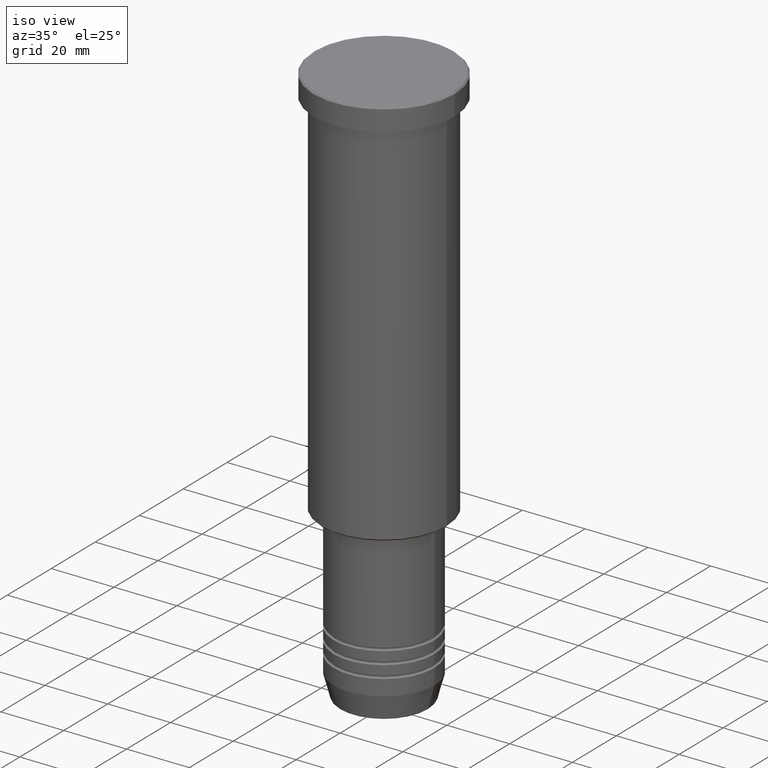
[diagram: clean part render]
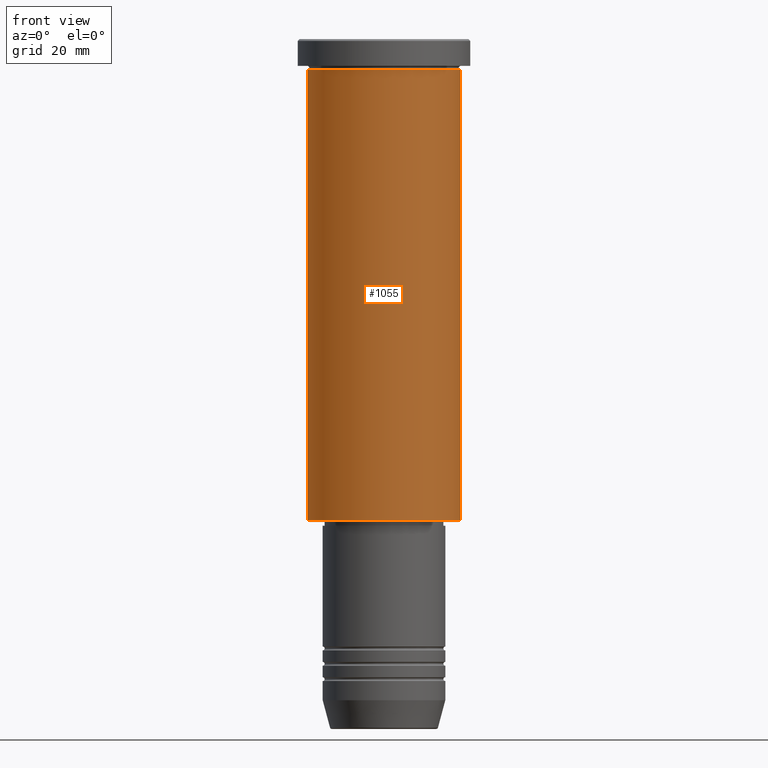
[diagram: tour spotlight — one face highlighted and labeled with its STEP entity id]
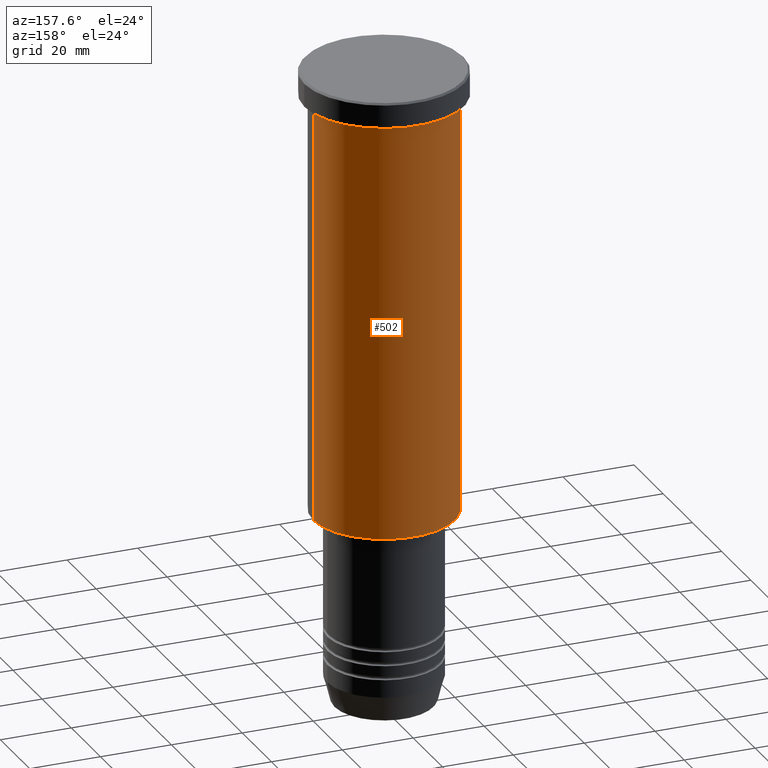
[diagram: tour spotlight — one face highlighted and labeled with its STEP entity id]
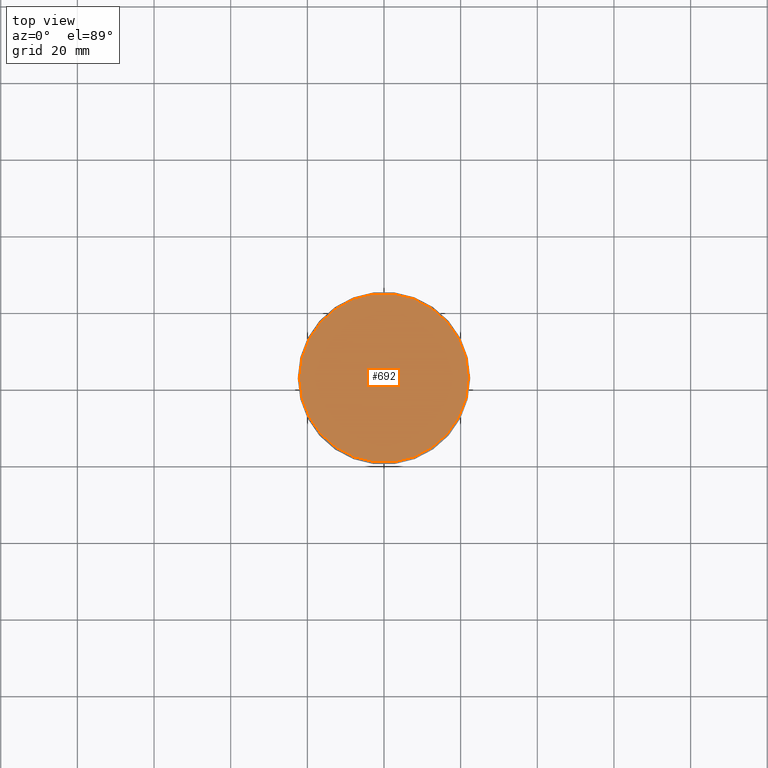
[diagram: tour spotlight — one face highlighted and labeled with its STEP entity id]
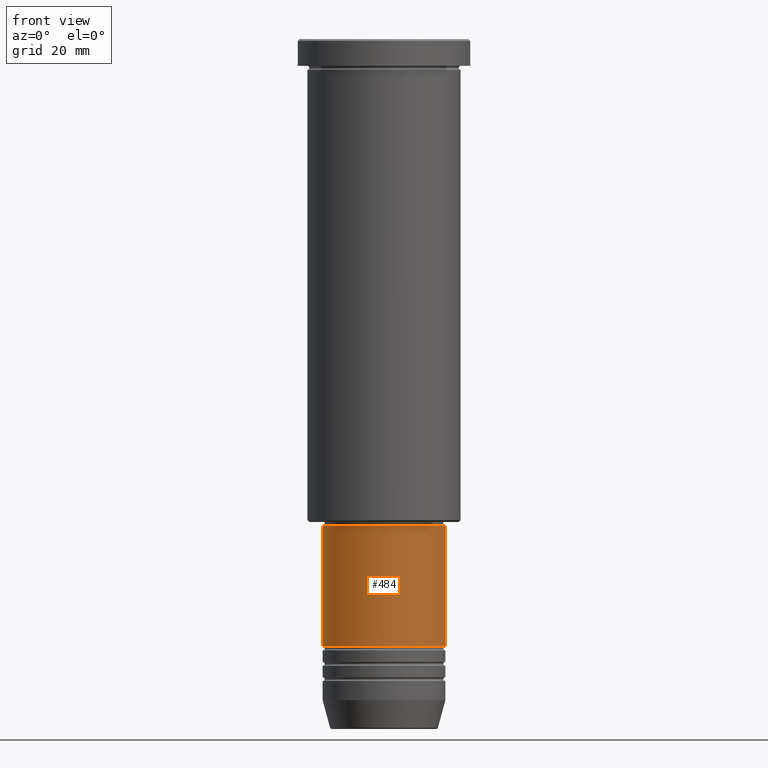
[diagram: tour spotlight — one face highlighted and labeled with its STEP entity id]
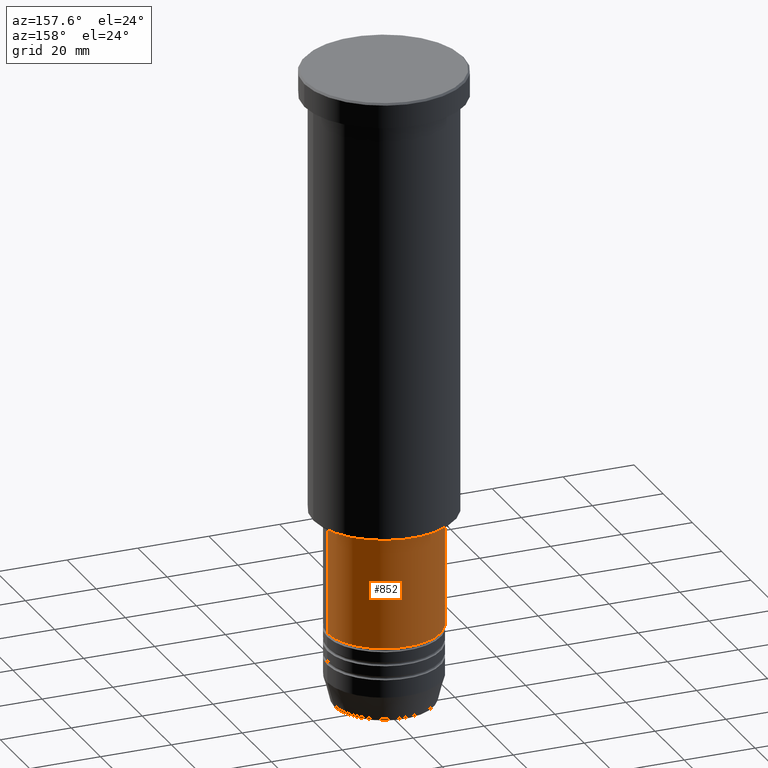
[diagram: tour spotlight — one face highlighted and labeled with its STEP entity id]
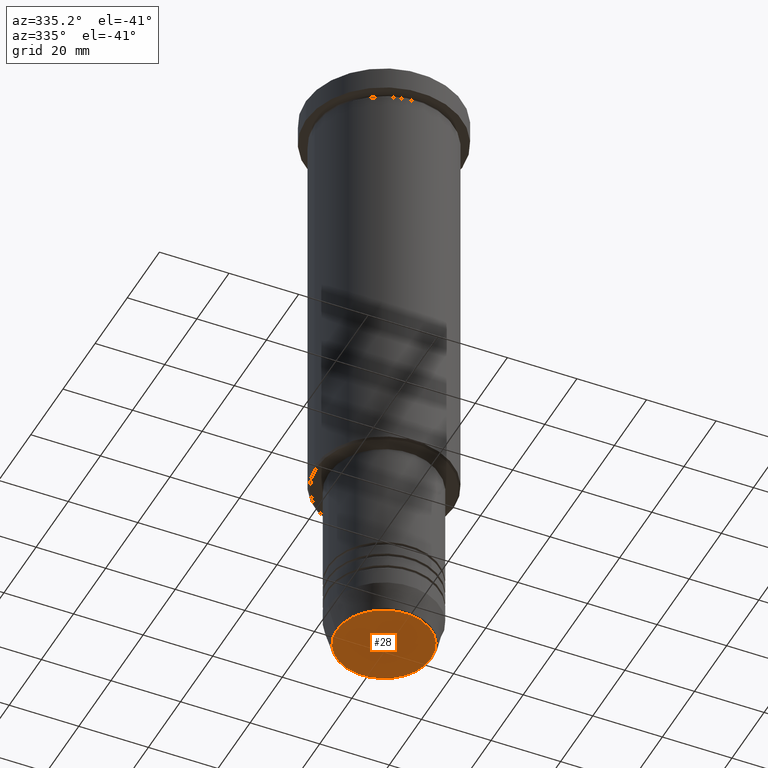
[diagram: tour spotlight — one face highlighted and labeled with its STEP entity id]
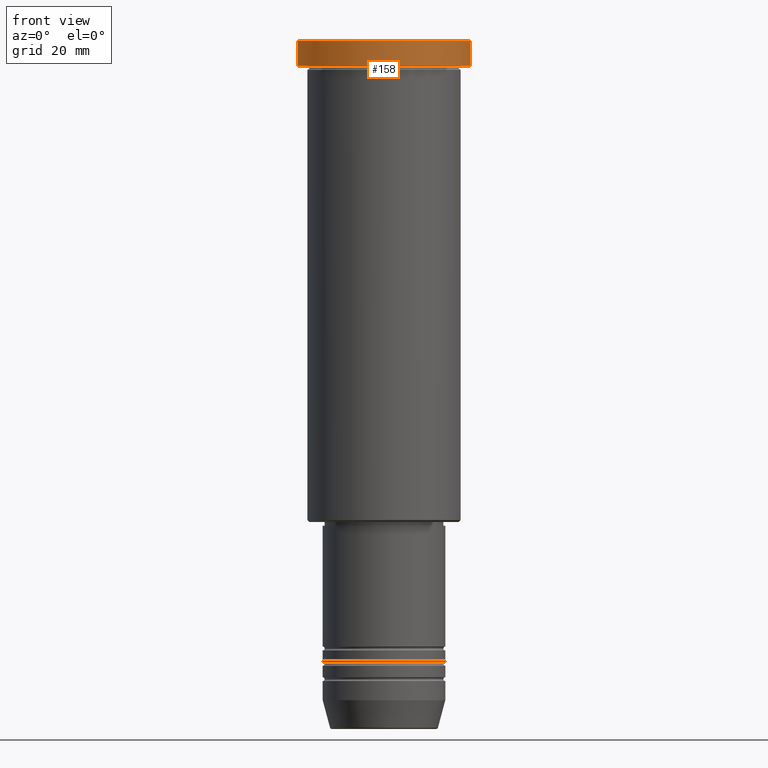
[diagram: tour spotlight — one face highlighted and labeled with its STEP entity id]
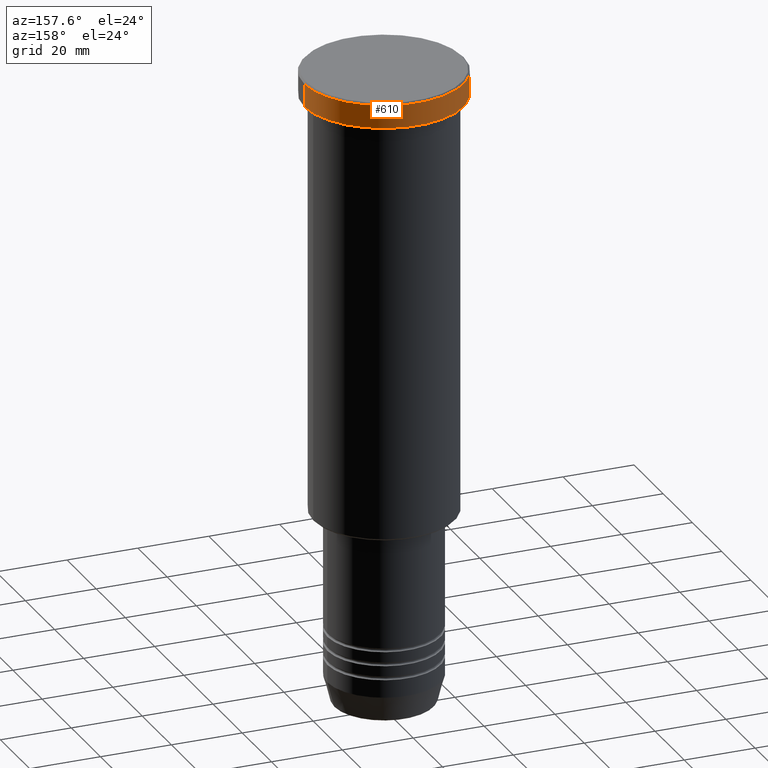
[diagram: tour spotlight — one face highlighted and labeled with its STEP entity id]
A machine part: a face-by-face anatomy tour. The part has 43 B-rep faces; the first image is the clean iso view, then the 8 largest visible faces are spotlighted one at a time (largest first), each with its STEP entity span.

Face 1 — front view, entity #1055. In plain terms, the highlighted cylindrical surface (partial cylindrical patch) has radius 20 mm, axis along (-0, -0, 1).
Definition (entity closure, byte-faithful):
#15 = ORIENTED_EDGE ( 'NONE', *, *, #117, .F. ) ;
#24 = ORIENTED_EDGE ( 'NONE', *, *, #882, .T. ) ;
#42 = AXIS2_PLACEMENT_3D ( 'NONE', #681, #99, #826 ) ;
#50 = ORIENTED_EDGE ( 'NONE', *, *, #293, .T. ) ;
#69 = VERTEX_POINT ( 'NONE', #744 ) ;
#75 = DIRECTION ( 'NONE',  ( -0.000000000000000000, -0.000000000000000000, 1.000000000000000000 ) ) ;
#84 = CARTESIAN_POINT ( 'NONE',  ( -20.00000000000000355, 2.449293598294706907E-15, 0.000000000000000000 ) ) ;
#99 = DIRECTION ( 'NONE',  ( -0.000000000000000000, -0.000000000000000000, 1.000000000000000000 ) ) ;
#117 = EDGE_CURVE ( 'NONE', #140, #69, #655, .T. ) ;
#121 = DIRECTION ( 'NONE',  ( 1.000000000000000000, 0.000000000000000000, 0.000000000000000000 ) ) ;
#140 = VERTEX_POINT ( 'NONE', #1010 ) ;
#145 = DIRECTION ( 'NONE',  ( -1.000000000000000000, 0.000000000000000000, 0.000000000000000000 ) ) ;
#200 = VERTEX_POINT ( 'NONE', #572 ) ;
#293 = EDGE_CURVE ( 'NONE', #200, #1036, #1107, .T. ) ;
#325 = CYLINDRICAL_SURFACE ( 'NONE', #1088, 20.00000000000000355 ) ;
#342 = DIRECTION ( 'NONE',  ( -0.000000000000000000, -0.000000000000000000, 1.000000000000000000 ) ) ;
#415 = CARTESIAN_POINT ( 'NONE',  ( 0.000000000000000000, 0.000000000000000000, 0.000000000000000000 ) ) ;
#419 = AXIS2_PLACEMENT_3D ( 'NONE', #718, #75, #145 ) ;
#423 = VECTOR ( 'NONE', #555, 1000.000000000000000 ) ;
#491 = EDGE_LOOP ( 'NONE', ( #904, #50, #24, #15 ) ) ;
#555 = DIRECTION ( 'NONE',  ( -0.000000000000000000, -0.000000000000000000, 1.000000000000000000 ) ) ;
#572 = CARTESIAN_POINT ( 'NONE',  ( -20.00000000000000355, 2.449293598294706907E-15, -125.5000000000000000 ) ) ;
#595 = FACE_OUTER_BOUND ( 'NONE', #491, .T. ) ;
#655 = CIRCLE ( 'NONE', #42, 20.00000000000000000 ) ;
#681 = CARTESIAN_POINT ( 'NONE',  ( 0.000000000000000000, 0.000000000000000000, -7.999999999999994671 ) ) ;
#714 = LINE ( 'NONE', #84, #423 ) ;
#718 = CARTESIAN_POINT ( 'NONE',  ( 0.000000000000000000, 0.000000000000000000, -125.5000000000000000 ) ) ;
#744 = CARTESIAN_POINT ( 'NONE',  ( 20.00000000000000000, 0.000000000000000000, -7.999999999999994671 ) ) ;
#747 = VECTOR ( 'NONE', #342, 1000.000000000000000 ) ;
#784 = LINE ( 'NONE', #967, #747 ) ;
#826 = DIRECTION ( 'NONE',  ( 1.000000000000000000, 0.000000000000000000, 0.000000000000000000 ) ) ;
#882 = EDGE_CURVE ( 'NONE', #1036, #69, #784, .T. ) ;
#904 = ORIENTED_EDGE ( 'NONE', *, *, #1165, .F. ) ;
#953 = DIRECTION ( 'NONE',  ( -0.000000000000000000, -0.000000000000000000, 1.000000000000000000 ) ) ;
#967 = CARTESIAN_POINT ( 'NONE',  ( 20.00000000000000355, 0.000000000000000000, 0.000000000000000000 ) ) ;
#1010 = CARTESIAN_POINT ( 'NONE',  ( -20.00000000000000000, 2.449293598294706513E-15, -7.999999999999994671 ) ) ;
#1036 = VERTEX_POINT ( 'NONE', #1049 ) ;
#1049 = CARTESIAN_POINT ( 'NONE',  ( 20.00000000000000355, 0.000000000000000000, -125.5000000000000000 ) ) ;
#1055 = ADVANCED_FACE ( 'NONE', ( #595 ), #325, .T. ) ;
#1088 = AXIS2_PLACEMENT_3D ( 'NONE', #415, #953, #121 ) ;
#1107 = CIRCLE ( 'NONE', #419, 20.00000000000000355 ) ;
#1165 = EDGE_CURVE ( 'NONE', #200, #140, #714, .T. ) ;

Face 2 — auxiliary view, entity #502. In plain terms, the highlighted cylindrical surface (partial cylindrical patch) has radius 20 mm, axis along (-0, -0, 1).
Definition (entity closure, byte-faithful):
#21 = ORIENTED_EDGE ( 'NONE', *, *, #1165, .T. ) ;
#33 = ORIENTED_EDGE ( 'NONE', *, *, #882, .F. ) ;
#69 = VERTEX_POINT ( 'NONE', #744 ) ;
#84 = CARTESIAN_POINT ( 'NONE',  ( -20.00000000000000355, 2.449293598294706907E-15, 0.000000000000000000 ) ) ;
#140 = VERTEX_POINT ( 'NONE', #1010 ) ;
#197 = ORIENTED_EDGE ( 'NONE', *, *, #1146, .T. ) ;
#200 = VERTEX_POINT ( 'NONE', #572 ) ;
#212 = CYLINDRICAL_SURFACE ( 'NONE', #676, 20.00000000000000355 ) ;
#342 = DIRECTION ( 'NONE',  ( -0.000000000000000000, -0.000000000000000000, 1.000000000000000000 ) ) ;
#397 = DIRECTION ( 'NONE',  ( -0.000000000000000000, -0.000000000000000000, 1.000000000000000000 ) ) ;
#423 = VECTOR ( 'NONE', #555, 1000.000000000000000 ) ;
#447 = DIRECTION ( 'NONE',  ( 1.000000000000000000, 0.000000000000000000, 0.000000000000000000 ) ) ;
#449 = CARTESIAN_POINT ( 'NONE',  ( 0.000000000000000000, 0.000000000000000000, -125.5000000000000000 ) ) ;
#478 = CIRCLE ( 'NONE', #830, 20.00000000000000355 ) ;
#500 = FACE_OUTER_BOUND ( 'NONE', #952, .T. ) ;
#502 = ADVANCED_FACE ( 'NONE', ( #500 ), #212, .T. ) ;
#526 = DIRECTION ( 'NONE',  ( -0.000000000000000000, -0.000000000000000000, 1.000000000000000000 ) ) ;
#555 = DIRECTION ( 'NONE',  ( -0.000000000000000000, -0.000000000000000000, 1.000000000000000000 ) ) ;
#572 = CARTESIAN_POINT ( 'NONE',  ( -20.00000000000000355, 2.449293598294706907E-15, -125.5000000000000000 ) ) ;
#619 = DIRECTION ( 'NONE',  ( -1.000000000000000000, 0.000000000000000000, 0.000000000000000000 ) ) ;
#624 = DIRECTION ( 'NONE',  ( -0.000000000000000000, -0.000000000000000000, 1.000000000000000000 ) ) ;
#675 = CARTESIAN_POINT ( 'NONE',  ( 0.000000000000000000, 0.000000000000000000, -7.999999999999994671 ) ) ;
#676 = AXIS2_PLACEMENT_3D ( 'NONE', #877, #526, #447 ) ;
#714 = LINE ( 'NONE', #84, #423 ) ;
#744 = CARTESIAN_POINT ( 'NONE',  ( 20.00000000000000000, 0.000000000000000000, -7.999999999999994671 ) ) ;
#747 = VECTOR ( 'NONE', #342, 1000.000000000000000 ) ;
#750 = AXIS2_PLACEMENT_3D ( 'NONE', #675, #397, #763 ) ;
#763 = DIRECTION ( 'NONE',  ( 1.000000000000000000, 0.000000000000000000, 0.000000000000000000 ) ) ;
#784 = LINE ( 'NONE', #967, #747 ) ;
#830 = AXIS2_PLACEMENT_3D ( 'NONE', #449, #624, #619 ) ;
#877 = CARTESIAN_POINT ( 'NONE',  ( 0.000000000000000000, 0.000000000000000000, 0.000000000000000000 ) ) ;
#882 = EDGE_CURVE ( 'NONE', #1036, #69, #784, .T. ) ;
#952 = EDGE_LOOP ( 'NONE', ( #197, #21, #1070, #33 ) ) ;
#962 = EDGE_CURVE ( 'NONE', #69, #140, #1158, .T. ) ;
#967 = CARTESIAN_POINT ( 'NONE',  ( 20.00000000000000355, 0.000000000000000000, 0.000000000000000000 ) ) ;
#1010 = CARTESIAN_POINT ( 'NONE',  ( -20.00000000000000000, 2.449293598294706513E-15, -7.999999999999994671 ) ) ;
#1036 = VERTEX_POINT ( 'NONE', #1049 ) ;
#1049 = CARTESIAN_POINT ( 'NONE',  ( 20.00000000000000355, 0.000000000000000000, -125.5000000000000000 ) ) ;
#1070 = ORIENTED_EDGE ( 'NONE', *, *, #962, .F. ) ;
#1146 = EDGE_CURVE ( 'NONE', #1036, #200, #478, .T. ) ;
#1158 = CIRCLE ( 'NONE', #750, 20.00000000000000000 ) ;
#1165 = EDGE_CURVE ( 'NONE', #200, #140, #714, .T. ) ;

Face 3 — top view, entity #692. In plain terms, the highlighted planar face has unit normal (0, -0, 1).
Definition (entity closure, byte-faithful):
#34 = DIRECTION ( 'NONE',  ( 1.000000000000000000, 0.000000000000000000, 0.000000000000000000 ) ) ;
#198 = CARTESIAN_POINT ( 'NONE',  ( 0.000000000000000000, 0.000000000000000000, 0.000000000000000000 ) ) ;
#296 = EDGE_LOOP ( 'NONE', ( #765, #935 ) ) ;
#315 = DIRECTION ( 'NONE',  ( -0.000000000000000000, -0.000000000000000000, 1.000000000000000000 ) ) ;
#319 = DIRECTION ( 'NONE',  ( 1.000000000000000000, 0.000000000000000000, 0.000000000000000000 ) ) ;
#329 = CARTESIAN_POINT ( 'NONE',  ( 0.000000000000000000, 0.000000000000000000, 0.000000000000000000 ) ) ;
#335 = AXIS2_PLACEMENT_3D ( 'NONE', #329, #706, #1057 ) ;
#534 = CARTESIAN_POINT ( 'NONE',  ( -21.99999999999999289, 0.000000000000000000, 0.000000000000000000 ) ) ;
#660 = CIRCLE ( 'NONE', #1045, 21.99999999999999289 ) ;
#692 = ADVANCED_FACE ( 'NONE', ( #950 ), #1039, .T. ) ;
#706 = DIRECTION ( 'NONE',  ( -0.000000000000000000, -0.000000000000000000, 1.000000000000000000 ) ) ;
#765 = ORIENTED_EDGE ( 'NONE', *, *, #1106, .T. ) ;
#829 = AXIS2_PLACEMENT_3D ( 'NONE', #1053, #1058, #319 ) ;
#878 = VERTEX_POINT ( 'NONE', #534 ) ;
#891 = CIRCLE ( 'NONE', #335, 21.99999999999999289 ) ;
#935 = ORIENTED_EDGE ( 'NONE', *, *, #999, .T. ) ;
#950 = FACE_OUTER_BOUND ( 'NONE', #296, .T. ) ;
#999 = EDGE_CURVE ( 'NONE', #1090, #878, #660, .T. ) ;
#1039 = PLANE ( 'NONE',  #829 ) ;
#1045 = AXIS2_PLACEMENT_3D ( 'NONE', #198, #315, #34 ) ;
#1053 = CARTESIAN_POINT ( 'NONE',  ( 0.000000000000000000, 0.000000000000000000, 0.000000000000000000 ) ) ;
#1057 = DIRECTION ( 'NONE',  ( 1.000000000000000000, 0.000000000000000000, 0.000000000000000000 ) ) ;
#1058 = DIRECTION ( 'NONE',  ( 0.000000000000000000, -0.000000000000000000, 1.000000000000000000 ) ) ;
#1090 = VERTEX_POINT ( 'NONE', #1145 ) ;
#1106 = EDGE_CURVE ( 'NONE', #878, #1090, #891, .T. ) ;
#1145 = CARTESIAN_POINT ( 'NONE',  ( 21.99999999999999289, 2.724839128102860202E-15, 0.000000000000000000 ) ) ;

Face 4 — front view, entity #484. In plain terms, the highlighted cylindrical surface (partial cylindrical patch) has radius 16 mm, axis along (-0, -0, 1).
Definition (entity closure, byte-faithful):
#1 = DIRECTION ( 'NONE',  ( -0.000000000000000000, -0.000000000000000000, 1.000000000000000000 ) ) ;
#16 = FACE_OUTER_BOUND ( 'NONE', #585, .T. ) ;
#22 = CARTESIAN_POINT ( 'NONE',  ( 0.000000000000000000, 0.000000000000000000, -158.5000000000000000 ) ) ;
#106 = CYLINDRICAL_SURFACE ( 'NONE', #135, 16.00000000000000000 ) ;
#122 = DIRECTION ( 'NONE',  ( -0.000000000000000000, -0.000000000000000000, 1.000000000000000000 ) ) ;
#128 = DIRECTION ( 'NONE',  ( -0.000000000000000000, -0.000000000000000000, 1.000000000000000000 ) ) ;
#135 = AXIS2_PLACEMENT_3D ( 'NONE', #816, #773, #686 ) ;
#146 = VERTEX_POINT ( 'NONE', #299 ) ;
#157 = VECTOR ( 'NONE', #1, 1000.000000000000000 ) ;
#260 = ORIENTED_EDGE ( 'NONE', *, *, #354, .T. ) ;
#299 = CARTESIAN_POINT ( 'NONE',  ( -16.00000000000000000, 1.959434878635765131E-15, -127.0000000000000000 ) ) ;
#302 = AXIS2_PLACEMENT_3D ( 'NONE', #418, #702, #876 ) ;
#303 = ORIENTED_EDGE ( 'NONE', *, *, #704, .F. ) ;
#304 = ORIENTED_EDGE ( 'NONE', *, *, #1071, .F. ) ;
#354 = EDGE_CURVE ( 'NONE', #923, #1094, #456, .T. ) ;
#367 = CARTESIAN_POINT ( 'NONE',  ( -16.00000000000000000, 1.959434878635765131E-15, -158.5000000000000000 ) ) ;
#418 = CARTESIAN_POINT ( 'NONE',  ( 0.000000000000000000, 0.000000000000000000, -127.0000000000000000 ) ) ;
#456 = LINE ( 'NONE', #759, #157 ) ;
#484 = ADVANCED_FACE ( 'NONE', ( #16 ), #106, .T. ) ;
#523 = ORIENTED_EDGE ( 'NONE', *, *, #654, .T. ) ;
#585 = EDGE_LOOP ( 'NONE', ( #303, #523, #260, #304 ) ) ;
#645 = VERTEX_POINT ( 'NONE', #367 ) ;
#654 = EDGE_CURVE ( 'NONE', #645, #923, #679, .T. ) ;
#679 = CIRCLE ( 'NONE', #780, 16.00000000000000000 ) ;
#686 = DIRECTION ( 'NONE',  ( 1.000000000000000000, 0.000000000000000000, 0.000000000000000000 ) ) ;
#702 = DIRECTION ( 'NONE',  ( -0.000000000000000000, -0.000000000000000000, 1.000000000000000000 ) ) ;
#704 = EDGE_CURVE ( 'NONE', #645, #146, #1140, .T. ) ;
#759 = CARTESIAN_POINT ( 'NONE',  ( 16.00000000000000000, 0.000000000000000000, 0.000000000000000000 ) ) ;
#773 = DIRECTION ( 'NONE',  ( -0.000000000000000000, -0.000000000000000000, 1.000000000000000000 ) ) ;
#780 = AXIS2_PLACEMENT_3D ( 'NONE', #22, #128, #787 ) ;
#787 = DIRECTION ( 'NONE',  ( 1.000000000000000000, 0.000000000000000000, 0.000000000000000000 ) ) ;
#816 = CARTESIAN_POINT ( 'NONE',  ( 0.000000000000000000, 0.000000000000000000, 0.000000000000000000 ) ) ;
#849 = CIRCLE ( 'NONE', #302, 16.00000000000000000 ) ;
#876 = DIRECTION ( 'NONE',  ( 1.000000000000000000, 0.000000000000000000, 0.000000000000000000 ) ) ;
#923 = VERTEX_POINT ( 'NONE', #1002 ) ;
#927 = VECTOR ( 'NONE', #122, 1000.000000000000000 ) ;
#1002 = CARTESIAN_POINT ( 'NONE',  ( 16.00000000000000000, 0.000000000000000000, -158.5000000000000000 ) ) ;
#1034 = CARTESIAN_POINT ( 'NONE',  ( -16.00000000000000000, 1.959434878635765131E-15, 0.000000000000000000 ) ) ;
#1052 = CARTESIAN_POINT ( 'NONE',  ( 16.00000000000000000, 0.000000000000000000, -127.0000000000000000 ) ) ;
#1071 = EDGE_CURVE ( 'NONE', #146, #1094, #849, .T. ) ;
#1094 = VERTEX_POINT ( 'NONE', #1052 ) ;
#1140 = LINE ( 'NONE', #1034, #927 ) ;

Face 5 — auxiliary view, entity #852. In plain terms, the highlighted cylindrical surface (partial cylindrical patch) has radius 16 mm, axis along (-0, -0, 1).
Definition (entity closure, byte-faithful):
#1 = DIRECTION ( 'NONE',  ( -0.000000000000000000, -0.000000000000000000, 1.000000000000000000 ) ) ;
#29 = CIRCLE ( 'NONE', #965, 16.00000000000000000 ) ;
#70 = FACE_OUTER_BOUND ( 'NONE', #570, .T. ) ;
#86 = AXIS2_PLACEMENT_3D ( 'NONE', #628, #1084, #261 ) ;
#122 = DIRECTION ( 'NONE',  ( -0.000000000000000000, -0.000000000000000000, 1.000000000000000000 ) ) ;
#146 = VERTEX_POINT ( 'NONE', #299 ) ;
#149 = EDGE_CURVE ( 'NONE', #1094, #146, #155, .T. ) ;
#155 = CIRCLE ( 'NONE', #509, 16.00000000000000000 ) ;
#157 = VECTOR ( 'NONE', #1, 1000.000000000000000 ) ;
#164 = DIRECTION ( 'NONE',  ( 1.000000000000000000, 0.000000000000000000, 0.000000000000000000 ) ) ;
#202 = DIRECTION ( 'NONE',  ( -0.000000000000000000, -0.000000000000000000, 1.000000000000000000 ) ) ;
#210 = DIRECTION ( 'NONE',  ( 1.000000000000000000, 0.000000000000000000, 0.000000000000000000 ) ) ;
#245 = CARTESIAN_POINT ( 'NONE',  ( 0.000000000000000000, 0.000000000000000000, -158.5000000000000000 ) ) ;
#261 = DIRECTION ( 'NONE',  ( 1.000000000000000000, 0.000000000000000000, 0.000000000000000000 ) ) ;
#299 = CARTESIAN_POINT ( 'NONE',  ( -16.00000000000000000, 1.959434878635765131E-15, -127.0000000000000000 ) ) ;
#354 = EDGE_CURVE ( 'NONE', #923, #1094, #456, .T. ) ;
#367 = CARTESIAN_POINT ( 'NONE',  ( -16.00000000000000000, 1.959434878635765131E-15, -158.5000000000000000 ) ) ;
#435 = DIRECTION ( 'NONE',  ( -0.000000000000000000, -0.000000000000000000, 1.000000000000000000 ) ) ;
#436 = ORIENTED_EDGE ( 'NONE', *, *, #149, .F. ) ;
#442 = ORIENTED_EDGE ( 'NONE', *, *, #804, .T. ) ;
#456 = LINE ( 'NONE', #759, #157 ) ;
#509 = AXIS2_PLACEMENT_3D ( 'NONE', #1028, #202, #210 ) ;
#570 = EDGE_LOOP ( 'NONE', ( #442, #880, #436, #1046 ) ) ;
#628 = CARTESIAN_POINT ( 'NONE',  ( 0.000000000000000000, 0.000000000000000000, 0.000000000000000000 ) ) ;
#645 = VERTEX_POINT ( 'NONE', #367 ) ;
#704 = EDGE_CURVE ( 'NONE', #645, #146, #1140, .T. ) ;
#759 = CARTESIAN_POINT ( 'NONE',  ( 16.00000000000000000, 0.000000000000000000, 0.000000000000000000 ) ) ;
#804 = EDGE_CURVE ( 'NONE', #923, #645, #29, .T. ) ;
#852 = ADVANCED_FACE ( 'NONE', ( #70 ), #1091, .T. ) ;
#880 = ORIENTED_EDGE ( 'NONE', *, *, #704, .T. ) ;
#923 = VERTEX_POINT ( 'NONE', #1002 ) ;
#927 = VECTOR ( 'NONE', #122, 1000.000000000000000 ) ;
#965 = AXIS2_PLACEMENT_3D ( 'NONE', #245, #435, #164 ) ;
#1002 = CARTESIAN_POINT ( 'NONE',  ( 16.00000000000000000, 0.000000000000000000, -158.5000000000000000 ) ) ;
#1028 = CARTESIAN_POINT ( 'NONE',  ( 0.000000000000000000, 0.000000000000000000, -127.0000000000000000 ) ) ;
#1034 = CARTESIAN_POINT ( 'NONE',  ( -16.00000000000000000, 1.959434878635765131E-15, 0.000000000000000000 ) ) ;
#1046 = ORIENTED_EDGE ( 'NONE', *, *, #354, .F. ) ;
#1052 = CARTESIAN_POINT ( 'NONE',  ( 16.00000000000000000, 0.000000000000000000, -127.0000000000000000 ) ) ;
#1084 = DIRECTION ( 'NONE',  ( -0.000000000000000000, -0.000000000000000000, 1.000000000000000000 ) ) ;
#1091 = CYLINDRICAL_SURFACE ( 'NONE', #86, 16.00000000000000000 ) ;
#1094 = VERTEX_POINT ( 'NONE', #1052 ) ;
#1140 = LINE ( 'NONE', #1034, #927 ) ;

Face 6 — auxiliary view, entity #28. In plain terms, the highlighted planar face has unit normal (0, -0, 1).
Definition (entity closure, byte-faithful):
#28 = ADVANCED_FACE ( 'NONE', ( #620 ), #445, .F. ) ;
#139 = CARTESIAN_POINT ( 'NONE',  ( -13.60671756277710109, 1.695915260300172047E-15, -180.0000000000000000 ) ) ;
#154 = DIRECTION ( 'NONE',  ( 1.000000000000000000, 0.000000000000000000, 0.000000000000000000 ) ) ;
#184 = AXIS2_PLACEMENT_3D ( 'NONE', #550, #543, #1098 ) ;
#221 = AXIS2_PLACEMENT_3D ( 'NONE', #503, #956, #547 ) ;
#256 = VERTEX_POINT ( 'NONE', #857 ) ;
#445 = PLANE ( 'NONE',  #863 ) ;
#503 = CARTESIAN_POINT ( 'NONE',  ( 0.000000000000000000, 0.000000000000000000, -180.0000000000000000 ) ) ;
#518 = VERTEX_POINT ( 'NONE', #139 ) ;
#524 = CARTESIAN_POINT ( 'NONE',  ( 0.000000000000000000, 0.000000000000000000, -180.0000000000000000 ) ) ;
#543 = DIRECTION ( 'NONE',  ( 0.000000000000000000, 0.000000000000000000, -1.000000000000000000 ) ) ;
#547 = DIRECTION ( 'NONE',  ( 1.000000000000000000, 0.000000000000000000, 0.000000000000000000 ) ) ;
#550 = CARTESIAN_POINT ( 'NONE',  ( 0.000000000000000000, 0.000000000000000000, -180.0000000000000000 ) ) ;
#553 = ORIENTED_EDGE ( 'NONE', *, *, #939, .T. ) ;
#583 = CIRCLE ( 'NONE', #221, 13.60671756277710109 ) ;
#620 = FACE_OUTER_BOUND ( 'NONE', #865, .T. ) ;
#696 = CIRCLE ( 'NONE', #184, 13.60671756277710109 ) ;
#715 = DIRECTION ( 'NONE',  ( 0.000000000000000000, -0.000000000000000000, 1.000000000000000000 ) ) ;
#813 = EDGE_CURVE ( 'NONE', #256, #518, #696, .T. ) ;
#857 = CARTESIAN_POINT ( 'NONE',  ( 13.60671756277710109, 0.000000000000000000, -180.0000000000000000 ) ) ;
#863 = AXIS2_PLACEMENT_3D ( 'NONE', #524, #715, #154 ) ;
#865 = EDGE_LOOP ( 'NONE', ( #1127, #553 ) ) ;
#939 = EDGE_CURVE ( 'NONE', #518, #256, #583, .T. ) ;
#956 = DIRECTION ( 'NONE',  ( 0.000000000000000000, 0.000000000000000000, -1.000000000000000000 ) ) ;
#1098 = DIRECTION ( 'NONE',  ( 1.000000000000000000, 0.000000000000000000, 0.000000000000000000 ) ) ;
#1127 = ORIENTED_EDGE ( 'NONE', *, *, #813, .T. ) ;

Face 7 — front view, entity #158. In plain terms, the highlighted cylindrical surface (partial cylindrical patch) has radius 22.5 mm, axis along (-0, -0, 1).
Definition (entity closure, byte-faithful):
#48 = EDGE_CURVE ( 'NONE', #148, #607, #631, .T. ) ;
#57 = AXIS2_PLACEMENT_3D ( 'NONE', #1100, #107, #274 ) ;
#92 = LINE ( 'NONE', #671, #746 ) ;
#107 = DIRECTION ( 'NONE',  ( -0.000000000000000000, -0.000000000000000000, 1.000000000000000000 ) ) ;
#148 = VERTEX_POINT ( 'NONE', #373 ) ;
#158 = ADVANCED_FACE ( 'NONE', ( #1104 ), #674, .T. ) ;
#168 = EDGE_CURVE ( 'NONE', #148, #452, #652, .T. ) ;
#183 = DIRECTION ( 'NONE',  ( -0.000000000000000000, -0.000000000000000000, 1.000000000000000000 ) ) ;
#194 = CARTESIAN_POINT ( 'NONE',  ( 0.000000000000000000, 0.000000000000000000, -0.4999999999999935052 ) ) ;
#264 = CARTESIAN_POINT ( 'NONE',  ( 22.50000000000000000, 0.000000000000000000, -0.4999999999999935052 ) ) ;
#274 = DIRECTION ( 'NONE',  ( 1.000000000000000000, 0.000000000000000000, 0.000000000000000000 ) ) ;
#316 = AXIS2_PLACEMENT_3D ( 'NONE', #194, #649, #1102 ) ;
#370 = EDGE_CURVE ( 'NONE', #1134, #452, #828, .T. ) ;
#373 = CARTESIAN_POINT ( 'NONE',  ( -22.50000000000000000, 2.755455298081544778E-15, -6.999999999999995559 ) ) ;
#420 = EDGE_CURVE ( 'NONE', #607, #1134, #92, .T. ) ;
#452 = VERTEX_POINT ( 'NONE', #903 ) ;
#483 = EDGE_LOOP ( 'NONE', ( #1018, #815, #797, #701 ) ) ;
#488 = DIRECTION ( 'NONE',  ( 1.000000000000000000, 0.000000000000000000, 0.000000000000000000 ) ) ;
#576 = AXIS2_PLACEMENT_3D ( 'NONE', #741, #183, #488 ) ;
#607 = VERTEX_POINT ( 'NONE', #968 ) ;
#631 = CIRCLE ( 'NONE', #576, 22.50000000000000000 ) ;
#649 = DIRECTION ( 'NONE',  ( 0.000000000000000000, 0.000000000000000000, -1.000000000000000000 ) ) ;
#652 = LINE ( 'NONE', #1001, #809 ) ;
#671 = CARTESIAN_POINT ( 'NONE',  ( 22.50000000000000000, 0.000000000000000000, 0.000000000000000000 ) ) ;
#674 = CYLINDRICAL_SURFACE ( 'NONE', #57, 22.50000000000000000 ) ;
#701 = ORIENTED_EDGE ( 'NONE', *, *, #370, .T. ) ;
#741 = CARTESIAN_POINT ( 'NONE',  ( 0.000000000000000000, 0.000000000000000000, -6.999999999999995559 ) ) ;
#746 = VECTOR ( 'NONE', #1017, 1000.000000000000000 ) ;
#797 = ORIENTED_EDGE ( 'NONE', *, *, #420, .T. ) ;
#809 = VECTOR ( 'NONE', #820, 1000.000000000000000 ) ;
#815 = ORIENTED_EDGE ( 'NONE', *, *, #48, .T. ) ;
#820 = DIRECTION ( 'NONE',  ( -0.000000000000000000, -0.000000000000000000, 1.000000000000000000 ) ) ;
#828 = CIRCLE ( 'NONE', #316, 22.50000000000000000 ) ;
#903 = CARTESIAN_POINT ( 'NONE',  ( -22.50000000000000000, 2.755455298081544778E-15, -0.4999999999999935052 ) ) ;
#968 = CARTESIAN_POINT ( 'NONE',  ( 22.50000000000000000, 0.000000000000000000, -6.999999999999995559 ) ) ;
#1001 = CARTESIAN_POINT ( 'NONE',  ( -22.50000000000000000, 2.755455298081544778E-15, 0.000000000000000000 ) ) ;
#1017 = DIRECTION ( 'NONE',  ( -0.000000000000000000, -0.000000000000000000, 1.000000000000000000 ) ) ;
#1018 = ORIENTED_EDGE ( 'NONE', *, *, #168, .F. ) ;
#1100 = CARTESIAN_POINT ( 'NONE',  ( 0.000000000000000000, 0.000000000000000000, 0.000000000000000000 ) ) ;
#1102 = DIRECTION ( 'NONE',  ( 1.000000000000000000, 0.000000000000000000, 0.000000000000000000 ) ) ;
#1104 = FACE_OUTER_BOUND ( 'NONE', #483, .T. ) ;
#1134 = VERTEX_POINT ( 'NONE', #264 ) ;

Face 8 — auxiliary view, entity #610. In plain terms, the highlighted cylindrical surface (partial cylindrical patch) has radius 22.5 mm, axis along (-0, -0, 1).
Definition (entity closure, byte-faithful):
#31 = ORIENTED_EDGE ( 'NONE', *, *, #753, .T. ) ;
#92 = LINE ( 'NONE', #671, #746 ) ;
#137 = AXIS2_PLACEMENT_3D ( 'NONE', #422, #782, #326 ) ;
#148 = VERTEX_POINT ( 'NONE', #373 ) ;
#151 = FACE_OUTER_BOUND ( 'NONE', #817, .T. ) ;
#168 = EDGE_CURVE ( 'NONE', #148, #452, #652, .T. ) ;
#257 = DIRECTION ( 'NONE',  ( 1.000000000000000000, 0.000000000000000000, 0.000000000000000000 ) ) ;
#264 = CARTESIAN_POINT ( 'NONE',  ( 22.50000000000000000, 0.000000000000000000, -0.4999999999999935052 ) ) ;
#278 = CIRCLE ( 'NONE', #886, 22.50000000000000000 ) ;
#306 = CARTESIAN_POINT ( 'NONE',  ( 0.000000000000000000, 0.000000000000000000, -0.4999999999999935052 ) ) ;
#326 = DIRECTION ( 'NONE',  ( 1.000000000000000000, 0.000000000000000000, 0.000000000000000000 ) ) ;
#334 = AXIS2_PLACEMENT_3D ( 'NONE', #790, #1161, #257 ) ;
#373 = CARTESIAN_POINT ( 'NONE',  ( -22.50000000000000000, 2.755455298081544778E-15, -6.999999999999995559 ) ) ;
#420 = EDGE_CURVE ( 'NONE', #607, #1134, #92, .T. ) ;
#422 = CARTESIAN_POINT ( 'NONE',  ( 0.000000000000000000, 0.000000000000000000, -6.999999999999995559 ) ) ;
#432 = CYLINDRICAL_SURFACE ( 'NONE', #334, 22.50000000000000000 ) ;
#434 = ORIENTED_EDGE ( 'NONE', *, *, #589, .T. ) ;
#452 = VERTEX_POINT ( 'NONE', #903 ) ;
#546 = DIRECTION ( 'NONE',  ( 0.000000000000000000, 0.000000000000000000, -1.000000000000000000 ) ) ;
#589 = EDGE_CURVE ( 'NONE', #452, #1134, #278, .T. ) ;
#607 = VERTEX_POINT ( 'NONE', #968 ) ;
#610 = ADVANCED_FACE ( 'NONE', ( #151 ), #432, .T. ) ;
#652 = LINE ( 'NONE', #1001, #809 ) ;
#671 = CARTESIAN_POINT ( 'NONE',  ( 22.50000000000000000, 0.000000000000000000, 0.000000000000000000 ) ) ;
#730 = CIRCLE ( 'NONE', #137, 22.50000000000000000 ) ;
#746 = VECTOR ( 'NONE', #1017, 1000.000000000000000 ) ;
#753 = EDGE_CURVE ( 'NONE', #607, #148, #730, .T. ) ;
#782 = DIRECTION ( 'NONE',  ( -0.000000000000000000, -0.000000000000000000, 1.000000000000000000 ) ) ;
#790 = CARTESIAN_POINT ( 'NONE',  ( 0.000000000000000000, 0.000000000000000000, 0.000000000000000000 ) ) ;
#809 = VECTOR ( 'NONE', #820, 1000.000000000000000 ) ;
#817 = EDGE_LOOP ( 'NONE', ( #31, #1072, #434, #1117 ) ) ;
#820 = DIRECTION ( 'NONE',  ( -0.000000000000000000, -0.000000000000000000, 1.000000000000000000 ) ) ;
#886 = AXIS2_PLACEMENT_3D ( 'NONE', #306, #546, #892 ) ;
#892 = DIRECTION ( 'NONE',  ( 1.000000000000000000, 0.000000000000000000, 0.000000000000000000 ) ) ;
#903 = CARTESIAN_POINT ( 'NONE',  ( -22.50000000000000000, 2.755455298081544778E-15, -0.4999999999999935052 ) ) ;
#968 = CARTESIAN_POINT ( 'NONE',  ( 22.50000000000000000, 0.000000000000000000, -6.999999999999995559 ) ) ;
#1001 = CARTESIAN_POINT ( 'NONE',  ( -22.50000000000000000, 2.755455298081544778E-15, 0.000000000000000000 ) ) ;
#1017 = DIRECTION ( 'NONE',  ( -0.000000000000000000, -0.000000000000000000, 1.000000000000000000 ) ) ;
#1072 = ORIENTED_EDGE ( 'NONE', *, *, #168, .T. ) ;
#1117 = ORIENTED_EDGE ( 'NONE', *, *, #420, .F. ) ;
#1134 = VERTEX_POINT ( 'NONE', #264 ) ;
#1161 = DIRECTION ( 'NONE',  ( -0.000000000000000000, -0.000000000000000000, 1.000000000000000000 ) ) ;